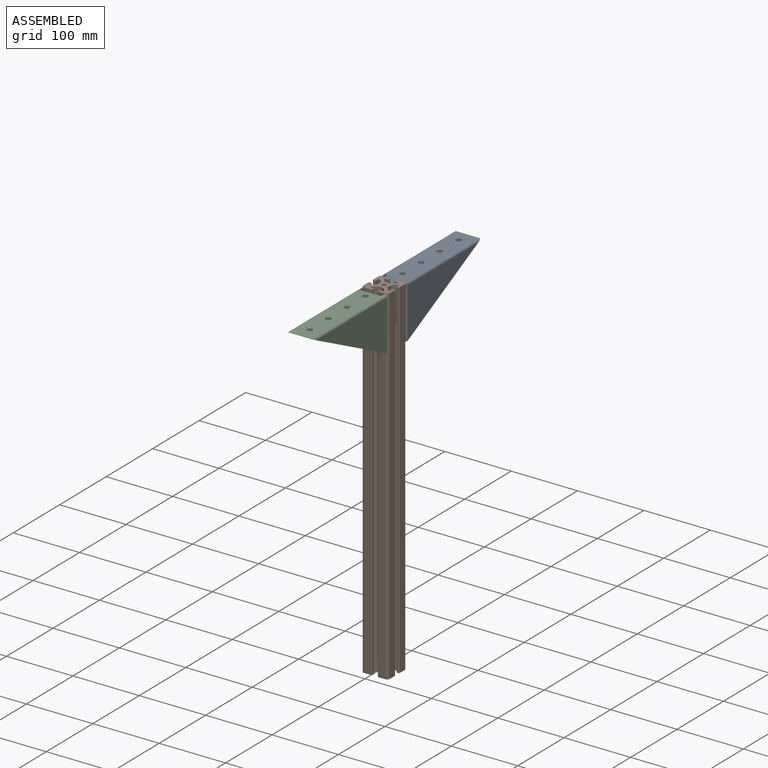
[diagram: assembled view]
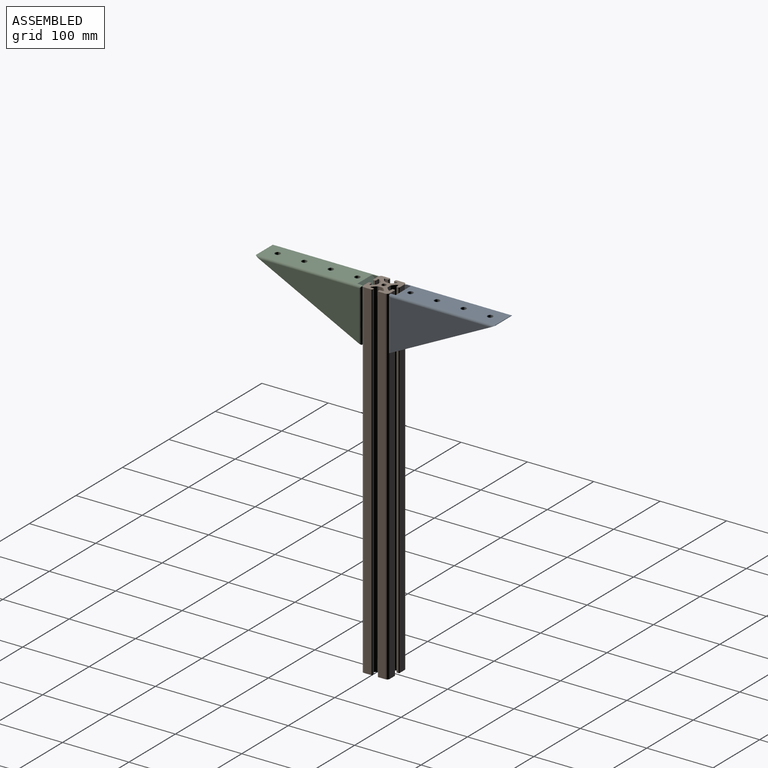
[diagram: assembled view, second angle]
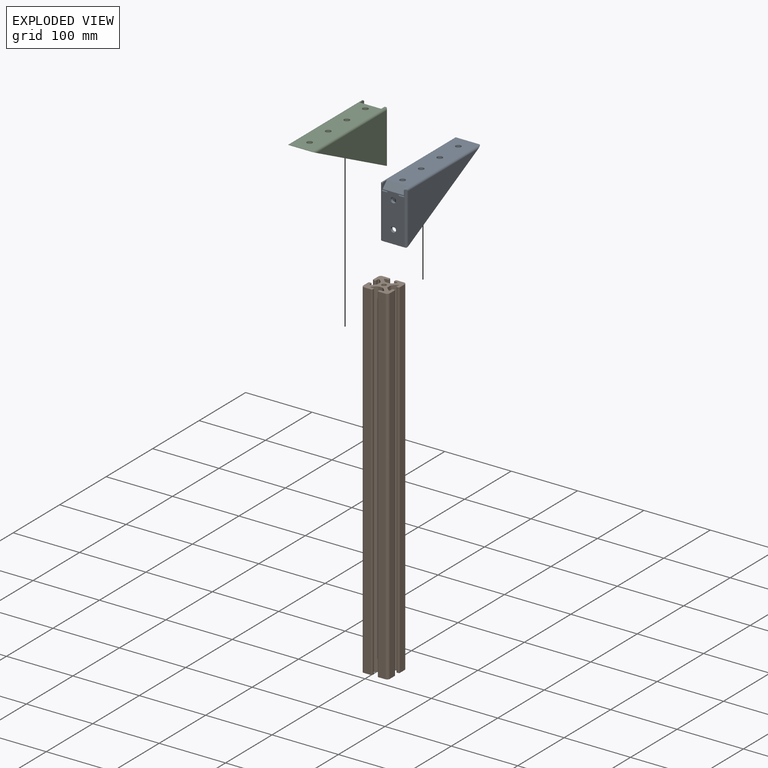
[diagram: exploded view]
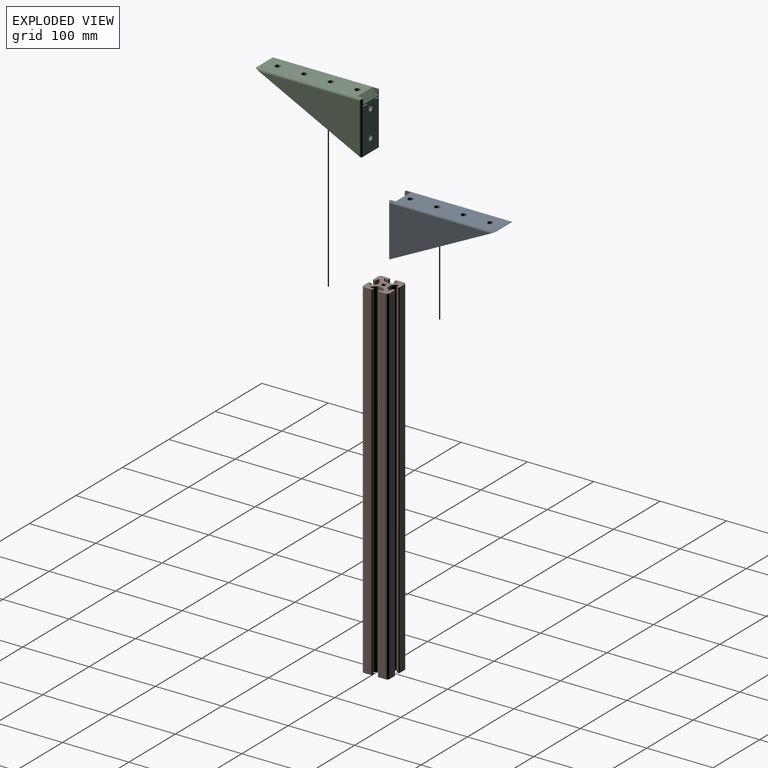
[diagram: exploded view, second angle]
ASSEMBLY  parts=3 mates=2
PART A: 77 faces, bbox 40.1x165.2x81 mm
  f0: cylinder r=4.1mm len=8.2mm, axis (0,-1,0), area 103mm2, adj f34,f57
  f1: cylinder r=4.1mm len=8.2mm, axis (0,-1,0), area 103mm2, adj f34,f57
  f2: cylinder r=4.1mm len=8.2mm, axis (0,0,-1), area 103mm2, adj f21,f47
  f3: cylinder r=4.1mm len=8.2mm, axis (0,0,-1), area 103mm2, adj f21,f47
  f4: cylinder r=4.1mm len=8.2mm, axis (0,0,-1), area 103mm2, adj f21,f47
  f5: cylinder r=4.1mm len=8.2mm, axis (0,0,-1), area 103mm2, adj f21,f47
  f6: cylinder r=3.4mm len=8.76mm, axis (0,0.45,0.89), area 128.2mm2, adj f17,f67
  f7: cylinder r=3.4mm len=8.76mm, axis (0,0.45,0.89), area 128.2mm2, adj f16,f64
  f8: cylinder r=3.4mm len=8.76mm, axis (0,0.45,0.89), area 128.2mm2, adj f15,f60
  f9: cylinder r=3.4mm len=8.76mm, axis (0,0.45,0.89), area 128.2mm2, adj f14,f53
  f10: cylinder r=3.4mm len=8.76mm, axis (0,0.45,0.89), area 128.2mm2, adj f13,f49
  f11: cylinder r=3.4mm len=8.76mm, axis (0,0.45,0.89), area 128.2mm2, adj f12,f44
  f12: plane 6.8x6.09mm, normal (0,-0.45,-0.89), area 36.3mm2, adj f11
  f13: plane 6.8x6.09mm, normal (0,-0.45,-0.89), area 36.3mm2, adj f10
  f14: plane 6.8x6.09mm, normal (0,-0.45,-0.89), area 36.3mm2, adj f9
  f15: plane 6.8x6.09mm, normal (0,-0.45,-0.89), area 36.3mm2, adj f8
  f16: plane 6.8x6.09mm, normal (0,-0.45,-0.89), area 36.3mm2, adj f7
  f17: plane 6.8x6.09mm, normal (0,-0.45,-0.89), area 36.3mm2, adj f6
  f18: plane 32x9mm, normal (0,0.71,0.71), area 407.3mm2, adj f19,f20,f21,f34
  f19: plane 9x9mm, normal (1,0,0), area 39.6mm2, adj f18,f21,f22,f34
  f20: plane 9x9mm, normal (-1,0,0), area 39.6mm2, adj f18,f21,f27,f34
  f21: plane 157.5x33mm, normal (0,0,1), area 4762.3mm2, adj f2,f3,f4,f5,f18,f19,f20,f22
  f22: cylinder r=2mm len=2.44mm, axis (-1,0,0), area 4.6mm2, adj f19,f21,f26,f34,f36
  f23: cylinder r=3.5mm len=159.41mm, axis (0,-1,0), area 861.5mm2, adj f21,f24,f25,f27,f30,f73,f76
  f24: plane 37.2x0.2mm, normal (0,-1,0), area 7.4mm2, adj f23,f25,f26,f73
  f25: cylinder r=0.5mm len=36.61mm, axis (-1,0,0), area 27.3mm2, adj f21,f23,f24,f26
  f26: cylinder r=3.5mm len=159.41mm, axis (0,-1,0), area 861.5mm2, adj f21,f22,f24,f25,f36,f39,f73
  f27: cylinder r=2mm len=2.44mm, axis (-1,0,0), area 4.6mm2, adj f20,f21,f23,f30,f34
  f28: plane 1x0.07mm, normal (0,-1,0), area 0.1mm2, adj f29,f31,f32,f33
  f29: plane 1x0.57mm, normal (1,0,0), area 0.3mm2, adj f28,f30,f31,f33
  f30: cylinder r=3.5mm len=79.41mm, axis (0,0,1), area 427.9mm2, adj f23,f27,f29,f34,f73,f74,f75,f76
  f31: plane 8.9x1.13mm, normal (0,0.45,0.89), area 10.1mm2, adj f28,f29,f32,f33,f34,f56
  f32: plane 0.13x0.07mm, normal (1,0,0), area 0mm2, adj f28,f31,f33
  f33: plane 8.9x1.13mm, normal (0,0,-1), area 9.1mm2, adj f28,f29,f31,f32,f34,f56
  f34: plane 77.5x33mm, normal (0,1,0), area 2219mm2, adj f0,f1,f18,f19,f20,f22,f27,f30
  f35: plane 1x0.57mm, normal (-1,0,0), area 0.3mm2, adj f36,f37,f38,f40
  f36: cylinder r=3.5mm len=79.41mm, axis (0,0,1), area 427.9mm2, adj f22,f26,f34,f35,f39,f73,f74,f75
  f37: plane 1x0.07mm, normal (0,-1,0), area 0.1mm2, adj f35,f38,f40,f42
  f38: plane 8.9x1.13mm, normal (0,0.45,0.89), area 10.1mm2, adj f34,f35,f37,f40,f41,f42
  f39: plane 150.88x75.25mm, normal (-1,0,0), area 5677.3mm2, adj f26,f36,f73
  f40: plane 8.9x1.13mm, normal (0,0,-1), area 9.1mm2, adj f34,f35,f37,f38,f41,f42
  f41: cylinder r=5.4mm len=1.36mm, axis (0,0.45,0.89), area 0.3mm2, adj f34,f38,f40
  f42: plane 0.13x0.07mm, normal (-1,0,0), area 0mm2, adj f37,f38,f40
  f43: plane 11.81x5.89mm, normal (0,0.89,-0.45), area 46.2mm2, adj f44,f46,f47,f72
  f44: plane 9.66x8.9mm, normal (0,-0.45,-0.89), area 47.2mm2, adj f11,f43,f45,f46,f72
  f45: plane 6.99x3.5mm, normal (0,-0.89,0.45), area 27.3mm2, adj f44,f46,f47,f72
  f46: cylinder r=5.4mm len=16.63mm, axis (0,0.45,0.89), area 178.1mm2, adj f43,f44,f45,f47
  f47: plane 143.07x35mm, normal (0,0,-1), area 4422.6mm2, adj f2,f3,f4,f5,f43,f45,f46,f48
  f48: plane 38.59x19.25mm, normal (0,0.89,-0.45), area 150.9mm2, adj f47,f49,f51,f72
  f49: plane 9.66x8.9mm, normal (0,-0.45,-0.89), area 47.2mm2, adj f10,f48,f50,f51,f72
  f50: plane 33.77x16.84mm, normal (0,-0.89,0.45), area 132.1mm2, adj f47,f49,f51,f72
  f51: cylinder r=5.4mm len=43.41mm, axis (0,0.45,0.89), area 685.6mm2, adj f47,f48,f49,f50
  f52: plane 36.73x18.32mm, normal (0,0.89,-0.45), area 143.7mm2, adj f53,f54,f57,f72
  f53: plane 9.66x8.9mm, normal (0,-0.45,-0.89), area 47.2mm2, adj f9,f52,f54,f55,f72
  f54: cylinder r=5.4mm len=59.67mm, axis (0,0.45,0.89), area 876.7mm2, adj f52,f53,f55,f57,f58
  f55: plane 54.86x27.36mm, normal (0,-0.89,0.45), area 214.5mm2, adj f53,f54,f58,f72
  f56: cylinder r=5.4mm len=1.36mm, axis (0,0.45,0.89), area 0.3mm2, adj f31,f33,f34
  f57: plane 68.19x35mm, normal (0,-1,0), area 1927mm2, adj f0,f1,f52,f54,f58,f68,f69,f71
  f58: plane 35.14x6.45mm, normal (0,-0.71,-0.71), area 303mm2, adj f47,f54,f55,f57,f68,f70,f71,f72
  f59: plane 6.99x3.5mm, normal (0,-0.89,0.45), area 27.3mm2, adj f47,f60,f62,f71
  f60: plane 9.66x8.9mm, normal (0,-0.45,-0.89), area 47.2mm2, adj f8,f59,f61,f62,f71
  f61: plane 11.81x5.89mm, normal (0,0.89,-0.45), area 46.2mm2, adj f47,f60,f62,f71
  f62: cylinder r=5.4mm len=16.63mm, axis (0,0.45,0.89), area 178.1mm2, adj f47,f59,f60,f61
  f63: plane 33.77x16.84mm, normal (0,-0.89,0.45), area 132.1mm2, adj f47,f64,f66,f71
  f64: plane 9.66x8.9mm, normal (0,-0.45,-0.89), area 47.2mm2, adj f7,f63,f65,f66,f71
  f65: plane 38.59x19.25mm, normal (0,0.89,-0.45), area 150.9mm2, adj f47,f64,f66,f71
  f66: cylinder r=5.4mm len=43.41mm, axis (0,0.45,0.89), area 685.6mm2, adj f47,f63,f64,f65
  f67: plane 9.66x8.9mm, normal (0,-0.45,-0.89), area 47.2mm2, adj f6,f68,f69,f70,f71
  f68: cylinder r=5.4mm len=59.67mm, axis (0,0.45,0.89), area 876.7mm2, adj f57,f58,f67,f69,f70
  f69: plane 36.73x18.32mm, normal (0,0.89,-0.45), area 143.7mm2, adj f57,f67,f68,f71
  f70: plane 54.86x27.36mm, normal (0,-0.89,0.45), area 214.5mm2, adj f58,f67,f68,f71
  f71: plane 149.38x74.5mm, normal (1,0,0), area 4435.5mm2, adj f47,f57,f58,f59,f60,f61,f63,f64
  f72: plane 149.38x74.5mm, normal (-1,0,0), area 4435.5mm2, adj f43,f44,f45,f47,f48,f49,f50,f52
  f73: plane 159.11x79.41mm, normal (0,-0.45,-0.89), area 1257.5mm2, adj f23,f24,f26,f30,f36,f39,f47,f57
  f74: plane 37.9x0.5mm, normal (0,0,-1), area 18.7mm2, adj f30,f36,f73,f75
  f75: cylinder r=0.5mm len=36.61mm, axis (-1,0,0), area 27.3mm2, adj f30,f34,f36,f74
  f76: plane 150.88x75.25mm, normal (1,0,0), area 5677.3mm2, adj f23,f30,f73
PART B: 75 faces, bbox 40x525x40 mm
  f0: cylinder r=3.4mm len=525mm, axis (0,-1,0), area 11215.5mm2, adj f73,f74
  f1: plane 525x2mm, normal (1,0,0), area 1050mm2, adj f2,f15,f73,f74
  f2: cylinder r=1mm len=525mm, axis (0,-1,0), area 824.7mm2, adj f1,f3,f73,f74
  f3: plane 525x3.92mm, normal (0,0,1), area 2056mm2, adj f2,f4,f73,f74
  f4: cylinder r=1.08mm len=525mm, axis (0,-1,0), area 1255.1mm2, adj f3,f5,f73,f74
  f5: cylinder r=25mm len=525mm, axis (0,-1,0), area 3890.4mm2, adj f4,f6,f73,f74
  f6: cylinder r=4mm len=525mm, axis (0,-1,0), area 1343mm2, adj f5,f7,f73,f74
  f7: plane 525x4.39mm, normal (0,0,-1), area 2302.7mm2, adj f6,f8,f73,f74
  f8: cylinder r=4mm len=525mm, axis (0,-1,0), area 1343mm2, adj f7,f9,f73,f74
  f9: cylinder r=25mm len=525mm, axis (0,-1,0), area 3890.4mm2, adj f8,f10,f73,f74
  f10: cylinder r=1.08mm len=525mm, axis (0,-1,0), area 1255.1mm2, adj f9,f11,f73,f74
  f11: plane 525x3.92mm, normal (0,0,1), area 2056mm2, adj f10,f12,f73,f74
  f12: cylinder r=1mm len=525mm, axis (0,-1,0), area 824.7mm2, adj f11,f13,f73,f74
  f13: plane 525x2mm, normal (-1,0,0), area 1050mm2, adj f12,f14,f73,f74
  f14: cylinder r=1.5mm len=525mm, axis (0,-1,0), area 1237mm2, adj f13,f71,f73,f74
  f15: cylinder r=1.5mm len=525mm, axis (0,-1,0), area 1237mm2, adj f1,f16,f73,f74
  f16: plane 525x10.5mm, normal (0,0,-1), area 5512.5mm2, adj f15,f72,f73,f74
  f17: plane 525x2mm, normal (-1,0,0), area 1050mm2, adj f18,f31,f73,f74
  f18: cylinder r=1mm len=525mm, axis (0,-1,0), area 824.7mm2, adj f17,f19,f73,f74
  f19: plane 525x3.92mm, normal (0,0,-1), area 2056mm2, adj f18,f20,f73,f74
  f20: cylinder r=1.08mm len=525mm, axis (0,-1,0), area 1255.1mm2, adj f19,f21,f73,f74
  f21: cylinder r=25mm len=525mm, axis (0,-1,0), area 3890.4mm2, adj f20,f22,f73,f74
  f22: cylinder r=4mm len=525mm, axis (0,-1,0), area 1343mm2, adj f21,f23,f73,f74
  f23: plane 525x4.39mm, normal (0,0,1), area 2302.7mm2, adj f22,f24,f73,f74
  f24: cylinder r=4mm len=525mm, axis (0,-1,0), area 1343mm2, adj f23,f25,f73,f74
  f25: cylinder r=25mm len=525mm, axis (0,-1,0), area 3890.4mm2, adj f24,f26,f73,f74
  f26: cylinder r=1.08mm len=525mm, axis (0,-1,0), area 1255.1mm2, adj f25,f27,f73,f74
  f27: plane 525x3.92mm, normal (0,0,-1), area 2056mm2, adj f26,f28,f73,f74
  f28: cylinder r=1mm len=525mm, axis (0,-1,0), area 824.7mm2, adj f27,f29,f73,f74
  f29: plane 525x2mm, normal (1,0,0), area 1050mm2, adj f28,f30,f73,f74
  f30: cylinder r=1.5mm len=525mm, axis (0,-1,0), area 1237mm2, adj f29,f67,f73,f74
  f31: cylinder r=1.5mm len=525mm, axis (0,-1,0), area 1237mm2, adj f17,f32,f73,f74
  f32: plane 525x10.5mm, normal (0,0,1), area 5512.5mm2, adj f31,f68,f73,f74
  f33: plane 525x2mm, normal (0,0,-1), area 1050mm2, adj f34,f47,f73,f74
  f34: cylinder r=1mm len=525mm, axis (0,-1,0), area 824.7mm2, adj f33,f35,f73,f74
  f35: plane 525x3.92mm, normal (1,0,0), area 2056mm2, adj f34,f36,f73,f74
  f36: cylinder r=1.08mm len=525mm, axis (0,-1,0), area 1255.1mm2, adj f35,f37,f73,f74
  f37: cylinder r=25mm len=525mm, axis (0,-1,0), area 3890.4mm2, adj f36,f38,f73,f74
  f38: cylinder r=4mm len=525mm, axis (0,-1,0), area 1343mm2, adj f37,f39,f73,f74
  f39: plane 525x4.39mm, normal (-1,0,0), area 2302.7mm2, adj f38,f40,f73,f74
  f40: cylinder r=4mm len=525mm, axis (0,-1,0), area 1343mm2, adj f39,f41,f73,f74
  f41: cylinder r=25mm len=525mm, axis (0,-1,0), area 3890.4mm2, adj f40,f42,f73,f74
  f42: cylinder r=1.08mm len=525mm, axis (0,-1,0), area 1255.1mm2, adj f41,f43,f73,f74
  f43: plane 525x3.92mm, normal (1,0,0), area 2056mm2, adj f42,f44,f73,f74
  f44: cylinder r=1mm len=525mm, axis (0,-1,0), area 824.7mm2, adj f43,f45,f73,f74
  f45: plane 525x2mm, normal (0,0,1), area 1050mm2, adj f44,f46,f73,f74
  f46: cylinder r=1.5mm len=525mm, axis (0,-1,0), area 1237mm2, adj f45,f65,f73,f74
  f47: cylinder r=1.5mm len=525mm, axis (0,-1,0), area 1237mm2, adj f33,f48,f73,f74
  f48: plane 525x10.5mm, normal (-1,0,0), area 5512.5mm2, adj f47,f66,f73,f74
  f49: plane 525x2mm, normal (0,0,1), area 1050mm2, adj f50,f63,f73,f74
  f50: cylinder r=1mm len=525mm, axis (0,-1,0), area 824.7mm2, adj f49,f51,f73,f74
  f51: plane 525x3.92mm, normal (-1,0,0), area 2056mm2, adj f50,f52,f73,f74
  f52: cylinder r=1.08mm len=525mm, axis (0,-1,0), area 1255.1mm2, adj f51,f53,f73,f74
  f53: cylinder r=25mm len=525mm, axis (0,-1,0), area 3890.4mm2, adj f52,f54,f73,f74
  f54: cylinder r=4mm len=525mm, axis (0,-1,0), area 1343mm2, adj f53,f55,f73,f74
  f55: plane 525x4.39mm, normal (1,0,0), area 2302.7mm2, adj f54,f56,f73,f74
  f56: cylinder r=4mm len=525mm, axis (0,-1,0), area 1343mm2, adj f55,f57,f73,f74
  f57: cylinder r=25mm len=525mm, axis (0,-1,0), area 3890.4mm2, adj f56,f58,f73,f74
  f58: cylinder r=1.08mm len=525mm, axis (0,-1,0), area 1255.1mm2, adj f57,f59,f73,f74
  f59: plane 525x3.92mm, normal (-1,0,0), area 2056mm2, adj f58,f60,f73,f74
  f60: cylinder r=1mm len=525mm, axis (0,-1,0), area 824.7mm2, adj f59,f61,f73,f74
  f61: plane 525x2mm, normal (0,0,-1), area 1050mm2, adj f60,f62,f73,f74
  f62: cylinder r=1.5mm len=525mm, axis (0,-1,0), area 1237mm2, adj f61,f69,f73,f74
  f63: cylinder r=1.5mm len=525mm, axis (0,-1,0), area 1237mm2, adj f49,f64,f73,f74
  f64: plane 525x10.5mm, normal (1,0,0), area 5512.5mm2, adj f63,f70,f73,f74
  f65: plane 525x10.5mm, normal (-1,0,0), area 5512.5mm2, adj f46,f72,f73,f74
  f66: cylinder r=4mm len=525mm, axis (0,-1,0), area 3298.7mm2, adj f48,f67,f73,f74
  f67: plane 525x10.5mm, normal (0,0,1), area 5512.5mm2, adj f30,f66,f73,f74
  f68: cylinder r=4mm len=525mm, axis (0,-1,0), area 3298.7mm2, adj f32,f69,f73,f74
  f69: plane 525x10.5mm, normal (1,0,0), area 5512.5mm2, adj f62,f68,f73,f74
  f70: cylinder r=4mm len=525mm, axis (0,-1,0), area 3298.7mm2, adj f64,f71,f73,f74
  f71: plane 525x10.5mm, normal (0,0,-1), area 5512.5mm2, adj f14,f70,f73,f74
  f72: cylinder r=4mm len=525mm, axis (0,-1,0), area 3298.7mm2, adj f16,f65,f73,f74
  f73: plane 40x40mm, normal (0,-1,0), area 928.9mm2, adj f0,f1,f2,f3,f4,f5,f6,f7
  f74: plane 40x40mm, normal (0,1,0), area 928.9mm2, adj f0,f1,f2,f3,f4,f5,f6,f7
PART C: same geometry as A
PLACE A rot(axis=(0,0,1),180deg) t=(17.23,36.33,450.87)mm
PLACE B rot(axis=(1,0,0),90deg) t=(17.23,16.33,-64.13)mm
PLACE C rot(axis=(1,0,0),0deg) t=(17.23,-3.67,450.87)mm
MATE fastened A.f2 <-> B.f74  axis (0,0,1) through (17.23,56.33,450.87)mm
MATE fastened C.f2 <-> B.f74  axis (0,0,1) through (17.23,-23.67,450.87)mm
